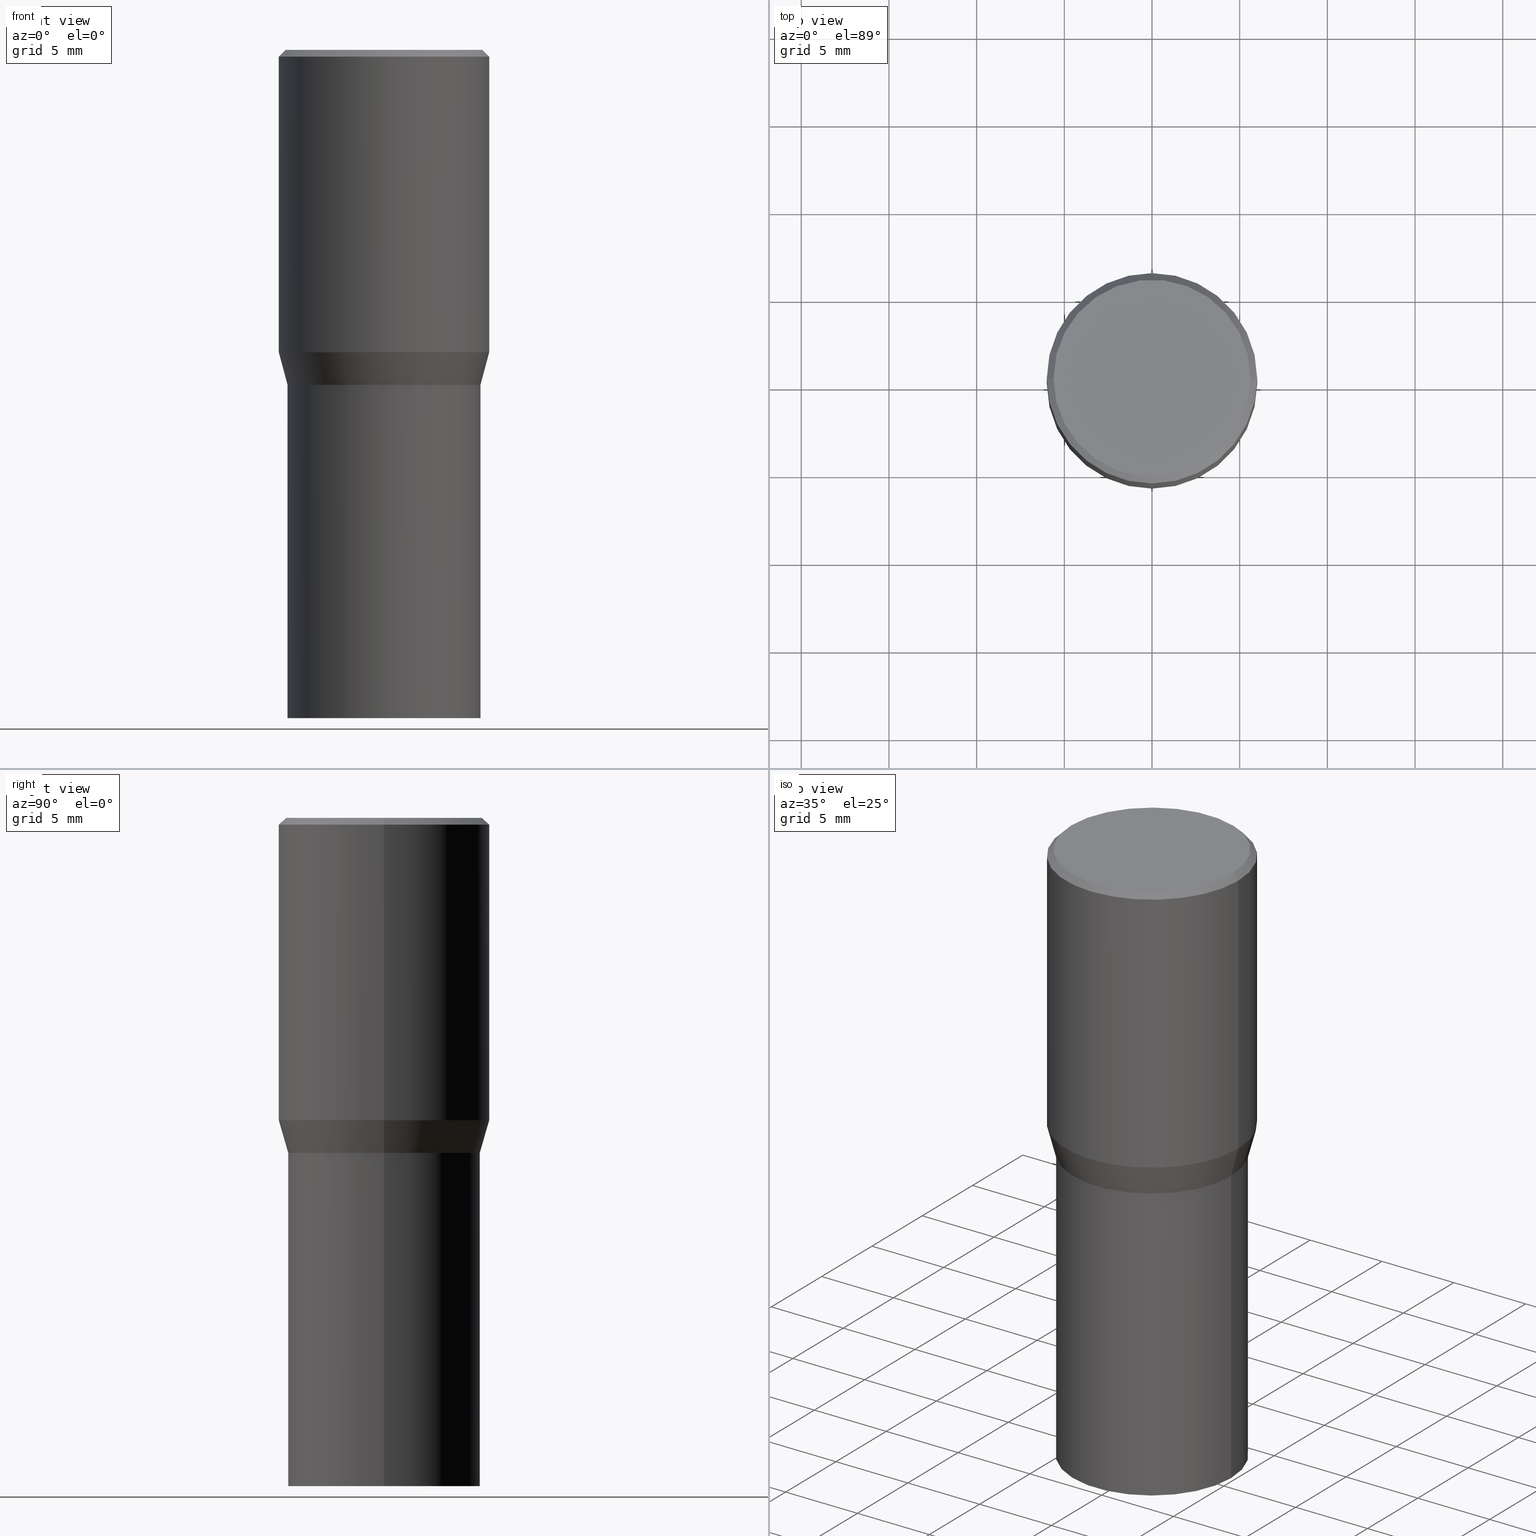
[diagram: canonical four-view strip — front | top / right | iso, engineering-drawing reading convention]
A machine part, canonical four-view strip (front | top / right | iso — engineering-drawing reading convention). The complete STEP part file that produces these views, byte-faithful:
ISO-10303-21;
HEADER;
FILE_DESCRIPTION (( 'STEP AP203' ),
    '1' );
FILE_NAME ('49150.STEP',
    '2024-03-12T19:58:21',
    ( '' ),
    ( '' ),
    'SwSTEP 2.0',
    'SolidWorks 2023',
    '' );
FILE_SCHEMA (( 'CONFIG_CONTROL_DESIGN' ));
ENDSEC;

DATA;
#1 = ORIENTED_EDGE ( 'NONE', *, *, #308, .T. ) ;
#2 = FACE_OUTER_BOUND ( 'NONE', #42, .T. ) ;
#3 = VECTOR ( 'NONE', #387, 39.37007874015748143 ) ;
#4 = AXIS2_PLACEMENT_3D ( 'NONE', #432, #307, #118 ) ;
#5 = CC_DESIGN_PERSON_AND_ORGANIZATION_ASSIGNMENT ( #277, #135, ( #119 ) ) ;
#6 = DIRECTION ( 'NONE',  ( -2.445468806185136877E-29, 3.491481338843145188E-15, 1.000000000000000000 ) ) ;
#7 = ORIENTED_EDGE ( 'NONE', *, *, #65, .F. ) ;
#8 = DIRECTION ( 'NONE',  ( 0.000000000000000000, 0.000000000000000000, 1.000000000000000000 ) ) ;
#9 = EDGE_LOOP ( 'NONE', ( #275, #311 ) ) ;
#10 = ADVANCED_FACE ( 'NONE', ( #91 ), #18, .T. ) ;
#11 = ORIENTED_EDGE ( 'NONE', *, *, #430, .T. ) ;
#12 = AXIS2_PLACEMENT_3D ( 'NONE', #451, #141, #109 ) ;
#13 = SECURITY_CLASSIFICATION ( '', '', #111 ) ;
#14 = PERSON_AND_ORGANIZATION ( #379, #140 ) ;
#15 = EDGE_LOOP ( 'NONE', ( #209, #408, #1, #280 ) ) ;
#16 = DESIGN_CONTEXT ( 'detailed design', #356, 'design' ) ;
#17 = DIRECTION ( 'NONE',  ( 1.000000000000000000, -6.982962677686266711E-15, 0.000000000000000000 ) ) ;
#18 = CYLINDRICAL_SURFACE ( 'NONE', #224, 0.2361999999999999933 ) ;
#19 = DIRECTION ( 'NONE',  ( 1.000000000000000000, -6.982962677686266711E-15, 4.876176775795935793E-29 ) ) ;
#20 = CONICAL_SURFACE ( 'NONE', #200, 0.2160500000000000198, 0.7853981633977554777 ) ;
#21 = VERTEX_POINT ( 'NONE', #278 ) ;
#22 = LINE ( 'NONE', #73, #330 ) ;
#23 = DIRECTION ( 'NONE',  ( -2.445468806185136597E-29, 3.491481338843145583E-15, 1.000000000000000000 ) ) ;
#24 = CLOSED_SHELL ( 'NONE', ( #74, #313, #376, #268 ) ) ;
#25 = CALENDAR_DATE ( 2024, 12, 3 ) ;
#26 = CIRCLE ( 'NONE', #383, 0.2165500000000000203 ) ;
#27 = CARTESIAN_POINT ( 'NONE',  ( 1.838992542251222532E-29, -2.625593966810045103E-15, -0.7519999999999998908 ) ) ;
#28 = DIRECTION ( 'NONE',  ( 1.000000000000000000, -6.982962677686264344E-15, 0.000000000000000000 ) ) ;
#29 = APPLICATION_CONTEXT ( 'configuration controlled 3d designs of mechanical parts and assemblies' ) ;
#30 = CARTESIAN_POINT ( 'NONE',  ( 1.544631344304202170E-15, 0.2212000000000000077, -7.488084343291421542E-16 ) ) ;
#31 = COORDINATED_UNIVERSAL_TIME_OFFSET ( 5, 0, .BEHIND. ) ;
#32 = ADVANCED_FACE ( 'NONE', ( #374 ), #70, .T. ) ;
#33 = AXIS2_PLACEMENT_3D ( 'NONE', #400, #235, #271 ) ;
#34 = CIRCLE ( 'NONE', #297, 0.2165500000000000203 ) ;
#35 = DIRECTION ( 'NONE',  ( 2.438088387897960049E-29, -3.491481338843145188E-15, -1.000000000000000000 ) ) ;
#36 = ORIENTED_EDGE ( 'NONE', *, *, #112, .F. ) ;
#37 = CALENDAR_DATE ( 2024, 12, 3 ) ;
#38 = DIRECTION ( 'NONE',  ( 1.000000000000000000, -6.982962677686266711E-15, 0.000000000000000000 ) ) ;
#39 = ORIENTED_EDGE ( 'NONE', *, *, #456, .T. ) ;
#40 = CARTESIAN_POINT ( 'NONE',  ( 0.2160500000000000198, -4.134263053324163313E-15, -0.7519999999999998908 ) ) ;
#41 = CC_DESIGN_PERSON_AND_ORGANIZATION_ASSIGNMENT ( #221, #69, ( #13 ) ) ;
#42 = EDGE_LOOP ( 'NONE', ( #223, #371 ) ) ;
#43 = CIRCLE ( 'NONE', #319, 0.2361999999999999933 ) ;
#44 = DIRECTION ( 'NONE',  ( -2.445468806185136597E-29, 3.491481338843145583E-15, 1.000000000000000000 ) ) ;
#45 = ORIENTED_EDGE ( 'NONE', *, *, #351, .T. ) ;
#46 = LENGTH_MEASURE_WITH_UNIT ( LENGTH_MEASURE( 0.02539999999999999897 ), #204 );
#47 = EDGE_CURVE ( 'NONE', #447, #21, #418, .T. ) ;
#48 = ORIENTED_EDGE ( 'NONE', *, *, #166, .F. ) ;
#49 = CALENDAR_DATE ( 2024, 12, 3 ) ;
#50 = MANIFOLD_SOLID_BREP ( 'Body-Move/Copy2[2]', #213 ) ;
#51 = DIRECTION ( 'NONE',  ( -2.445468806185136597E-29, 3.491481338843145583E-15, 1.000000000000000000 ) ) ;
#52 = DATE_TIME_ROLE ( 'creation_date' ) ;
#53 = FACE_OUTER_BOUND ( 'NONE', #270, .T. ) ;
#54 = AXIS2_PLACEMENT_3D ( 'NONE', #327, #386, #257 ) ;
#55 = DIRECTION ( 'NONE',  ( -2.445468806185136597E-29, 3.491481338843145583E-15, 1.000000000000000000 ) ) ;
#56 = ORIENTED_EDGE ( 'NONE', *, *, #97, .T. ) ;
#57 = EDGE_CURVE ( 'NONE', #229, #21, #426, .T. ) ;
#58 = DIRECTION ( 'NONE',  ( -2.445468806185136597E-29, 3.491481338843145583E-15, 1.000000000000000000 ) ) ;
#59 = VERTEX_POINT ( 'NONE', #100 ) ;
#60 = CC_DESIGN_DATE_AND_TIME_ASSIGNMENT ( #361, #187, ( #13 ) ) ;
#61 = EDGE_LOOP ( 'NONE', ( #363, #345 ) ) ;
#62 = VECTOR ( 'NONE', #357, 39.37007874015748143 ) ;
#63 = PRODUCT_DEFINITION_FORMATION_WITH_SPECIFIED_SOURCE ( 'ANY', '', #404, .NOT_KNOWN. ) ;
#64 = DIRECTION ( 'NONE',  ( 1.000000000000000000, -6.982962677686266711E-15, 0.000000000000000000 ) ) ;
#65 = EDGE_CURVE ( 'NONE', #447, #304, #174, .T. ) ;
#66 = DIRECTION ( 'NONE',  ( -2.445468806185136597E-29, 3.491481338843145583E-15, 1.000000000000000000 ) ) ;
#67 = PLANE ( 'NONE',  #354 ) ;
#68 = CIRCLE ( 'NONE', #96, 0.2165500000000000203 ) ;
#69 = PERSON_AND_ORGANIZATION_ROLE ( 'classification_officer' ) ;
#70 = CONICAL_SURFACE ( 'NONE', #397, 0.2165500000000000203, 0.2617993877991505736 ) ;
#71 = AXIS2_PLACEMENT_3D ( 'NONE', #407, #55, #17 ) ;
#72 = DIRECTION ( 'NONE',  ( 1.000000000000000000, -6.982962677686266711E-15, 0.000000000000000000 ) ) ;
#73 = CARTESIAN_POINT ( 'NONE',  ( -0.2361999999999999933, 1.597003564386848854E-15, -0.01499999999999999944 ) ) ;
#74 = ADVANCED_FACE ( 'NONE', ( #53 ), #203, .T. ) ;
#75 = LINE ( 'NONE', #466, #258 ) ;
#76 = DATE_AND_TIME ( #25, #389 ) ;
#77 = AXIS2_PLACEMENT_3D ( 'NONE', #453, #176, #72 ) ;
#78 = FACE_OUTER_BOUND ( 'NONE', #132, .T. ) ;
#79 = EDGE_LOOP ( 'NONE', ( #367, #413 ) ) ;
#80 = CARTESIAN_POINT ( 'NONE',  ( 3.668203209277704895E-29, -5.237222008264718177E-15, -1.500000000000000222 ) ) ;
#81 = EDGE_LOOP ( 'NONE', ( #380, #350, #11, #95 ) ) ;
#82 = CYLINDRICAL_SURFACE ( 'NONE', #84, 0.2165500000000001035 ) ;
#83 = ORIENTED_EDGE ( 'NONE', *, *, #423, .F. ) ;
#84 = AXIS2_PLACEMENT_3D ( 'NONE', #262, #334, #266 ) ;
#85 = DIRECTION ( 'NONE',  ( -2.445468806185136597E-29, 3.491481338843145583E-15, 1.000000000000000000 ) ) ;
#86 = CC_DESIGN_APPROVAL ( #231, ( #63 ) ) ;
#87 = ORIENTED_EDGE ( 'NONE', *, *, #452, .T. ) ;
#88 = ADVANCED_FACE ( 'NONE', ( #321 ), #145, .T. ) ;
#89 = EDGE_CURVE ( 'NONE', #438, #244, #282, .T. ) ;
#90 = FACE_OUTER_BOUND ( 'NONE', #365, .T. ) ;
#91 = FACE_OUTER_BOUND ( 'NONE', #433, .T. ) ;
#92 = PERSON_AND_ORGANIZATION_ROLE ( 'design_owner' ) ;
#93 = DIRECTION ( 'NONE',  ( 1.000000000000000000, -6.982962677686266711E-15, 0.000000000000000000 ) ) ;
#94 =( CONVERSION_BASED_UNIT ( 'INCH', #46 ) LENGTH_UNIT ( ) NAMED_UNIT ( #254 ) );
#95 = ORIENTED_EDGE ( 'NONE', *, *, #247, .F. ) ;
#96 = AXIS2_PLACEMENT_3D ( 'NONE', #326, #455, #294 ) ;
#97 = EDGE_CURVE ( 'NONE', #441, #159, #208, .T. ) ;
#98 = DIRECTION ( 'NONE',  ( -2.445468806185136877E-29, 3.491481338843145188E-15, 1.000000000000000000 ) ) ;
#99 = CC_DESIGN_PERSON_AND_ORGANIZATION_ASSIGNMENT ( #415, #92, ( #404 ) ) ;
#100 = CARTESIAN_POINT ( 'NONE',  ( -0.2212000000000000077, 1.570817454345525709E-15, 4.701447564591265970E-17 ) ) ;
#101 = DIRECTION ( 'NONE',  ( 1.000000000000000000, 0.000000000000000000, 0.000000000000000000 ) ) ;
#102 = ORIENTED_EDGE ( 'NONE', *, *, #196, .T. ) ;
#103 = DIRECTION ( 'NONE',  ( -1.000000000000000000, 6.982962677686266711E-15, 0.000000000000000000 ) ) ;
#104 = AXIS2_PLACEMENT_3D ( 'NONE', #256, #391, #151 ) ;
#105 = ADVANCED_FACE ( 'NONE', ( #392 ), #215, .F. ) ;
#106 =( GEOMETRIC_REPRESENTATION_CONTEXT ( 3 ) GLOBAL_UNCERTAINTY_ASSIGNED_CONTEXT ( ( #465 ) ) GLOBAL_UNIT_ASSIGNED_CONTEXT ( ( #94, #243, #171 ) ) REPRESENTATION_CONTEXT ( 'NONE', 'WORKASPACE' ) );
#107 = FACE_OUTER_BOUND ( 'NONE', #61, .T. ) ;
#108 = CARTESIAN_POINT ( 'NONE',  ( -0.2160500000000000198, -1.090466386200348708E-15, -0.7519999999999998908 ) ) ;
#109 = DIRECTION ( 'NONE',  ( -1.000000000000000000, 6.982962677686266711E-15, 0.000000000000000000 ) ) ;
#110 = VECTOR ( 'NONE', #185, 39.37007874015748143 ) ;
#111 = SECURITY_CLASSIFICATION_LEVEL ( 'unclassified' ) ;
#112 = EDGE_CURVE ( 'NONE', #59, #159, #22, .T. ) ;
#113 = CARTESIAN_POINT ( 'NONE',  ( -0.2361999999999999933, 4.673423884151294145E-16, -0.01499999999999999944 ) ) ;
#114 = FACE_OUTER_BOUND ( 'NONE', #126, .T. ) ;
#115 = ORIENTED_EDGE ( 'NONE', *, *, #142, .F. ) ;
#116 = PERSON_AND_ORGANIZATION ( #379, #140 ) ;
#117 = ADVANCED_BREP_SHAPE_REPRESENTATION ( '49150', ( #369, #50, #398 ), #106 ) ;
#118 = DIRECTION ( 'NONE',  ( 1.000000000000000000, -6.982962677686266711E-15, 4.876176775795935793E-29 ) ) ;
#119 = PRODUCT_DEFINITION ( 'UNKNOWN', '', #63, #16 ) ;
#120 = AXIS2_PLACEMENT_3D ( 'NONE', #459, #211, #177 ) ;
#121 = VECTOR ( 'NONE', #127, 39.37007874015748143 ) ;
#122 = ADVANCED_FACE ( 'NONE', ( #219 ), #20, .T. ) ;
#123 = PLANE ( 'NONE',  #368 ) ;
#124 = ORIENTED_EDGE ( 'NONE', *, *, #250, .T. ) ;
#125 = DIRECTION ( 'NONE',  ( 1.000000000000000000, -6.982962677686266711E-15, 0.000000000000000000 ) ) ;
#126 = EDGE_LOOP ( 'NONE', ( #337, #102, #436, #272 ) ) ;
#127 = DIRECTION ( 'NONE',  ( -0.2588190451025218497, 5.211531920934553408E-15, 0.9659258262890679791 ) ) ;
#128 = EDGE_LOOP ( 'NONE', ( #339, #340, #344, #306 ) ) ;
#129 = CIRCLE ( 'NONE', #77, 0.2361999999999999933 ) ;
#130 = DATE_AND_TIME ( #49, #161 ) ;
#131 = CC_DESIGN_DATE_AND_TIME_ASSIGNMENT ( #409, #52, ( #119 ) ) ;
#132 = EDGE_LOOP ( 'NONE', ( #39, #403, #302, #7 ) ) ;
#133 = CALENDAR_DATE ( 2024, 12, 3 ) ;
#134 = EDGE_LOOP ( 'NONE', ( #246, #170, #227, #186 ) ) ;
#135 = PERSON_AND_ORGANIZATION_ROLE ( 'creator' ) ;
#136 = DIRECTION ( 'NONE',  ( -2.445468806185136597E-29, 3.491481338843145583E-15, 1.000000000000000000 ) ) ;
#137 = APPLICATION_PROTOCOL_DEFINITION ( 'international standard', 'config_control_design', 1994, #29 ) ;
#138 = CIRCLE ( 'NONE', #449, 0.2165500000000002145 ) ;
#139 = ORIENTED_EDGE ( 'NONE', *, *, #411, .F. ) ;
#140 = ORGANIZATION ( 'UNSPECIFIED', 'UNSPECIFIED', '' ) ;
#141 = DIRECTION ( 'NONE',  ( 2.445468806185136597E-29, -3.491481338843145583E-15, -1.000000000000000000 ) ) ;
#142 = EDGE_CURVE ( 'NONE', #159, #441, #129, .T. ) ;
#143 = CARTESIAN_POINT ( 'NONE',  ( 1.659654580432621677E-29, -2.369546886817807077E-15, -0.6786652016312719748 ) ) ;
#144 = FACE_OUTER_BOUND ( 'NONE', #309, .T. ) ;
#145 = CONICAL_SURFACE ( 'NONE', #12, 0.2361999999999999933, 0.7853981633974459475 ) ;
#146 = CONICAL_SURFACE ( 'NONE', #414, 0.2160500000000000198, 0.7853981633977554777 ) ;
#147 = DIRECTION ( 'NONE',  ( -2.445468806185136597E-29, 3.491481338843145583E-15, 1.000000000000000000 ) ) ;
#148 = LINE ( 'NONE', #421, #62 ) ;
#149 = CALENDAR_DATE ( 2024, 12, 3 ) ;
#150 = EDGE_CURVE ( 'NONE', #443, #335, #26, .T. ) ;
#151 = DIRECTION ( 'NONE',  ( 1.000000000000000000, -6.982962677686266711E-15, 4.876176775795935793E-29 ) ) ;
#152 = CIRCLE ( 'NONE', #242, 0.2160500000000000198 ) ;
#153 = DIRECTION ( 'NONE',  ( 1.000000000000000000, -6.982962677686265922E-15, 4.876176775795935793E-29 ) ) ;
#154 = FACE_OUTER_BOUND ( 'NONE', #81, .T. ) ;
#155 = EDGE_CURVE ( 'NONE', #59, #241, #273, .T. ) ;
#156 = ORIENTED_EDGE ( 'NONE', *, *, #89, .F. ) ;
#157 = SHAPE_DEFINITION_REPRESENTATION ( #238, #117 ) ;
#158 = DIRECTION ( 'NONE',  ( 1.000000000000000000, -6.982962677686266711E-15, 0.000000000000000000 ) ) ;
#159 = VERTEX_POINT ( 'NONE', #113 ) ;
#160 = AXIS2_PLACEMENT_3D ( 'NONE', #424, #295, #64 ) ;
#161 = LOCAL_TIME ( 15, 58, 21.00000000000000000, #442 ) ;
#162 = DIRECTION ( 'NONE',  ( -1.000000000000000000, 6.982962677686265922E-15, -4.876176775795935793E-29 ) ) ;
#163 = ORIENTED_EDGE ( 'NONE', *, *, #430, .F. ) ;
#164 = LINE ( 'NONE', #440, #121 ) ;
#165 = EDGE_LOOP ( 'NONE', ( #232, #124, #333, #445 ) ) ;
#166 = EDGE_CURVE ( 'NONE', #448, #304, #183, .T. ) ;
#167 = APPROVAL_DATE_TIME ( #130, #372 ) ;
#168 = CARTESIAN_POINT ( 'NONE',  ( 1.838992542251222813E-29, -2.625593966810045497E-15, -0.7520000000000001128 ) ) ;
#169 = CARTESIAN_POINT ( 'NONE',  ( -0.2165500000000000203, -2.392727693248884740E-15, -1.500000000000000222 ) ) ;
#170 = ORIENTED_EDGE ( 'NONE', *, *, #155, .F. ) ;
#171 =( NAMED_UNIT ( * ) SI_UNIT ( $, .STERADIAN. ) SOLID_ANGLE_UNIT ( ) );
#172 = DIRECTION ( 'NONE',  ( 1.000000000000000000, -6.982962677686266711E-15, 0.000000000000000000 ) ) ;
#173 = CARTESIAN_POINT ( 'NONE',  ( 0.2165500000000000203, -4.137754534663007109E-15, -0.7520000000000001128 ) ) ;
#174 = LINE ( 'NONE', #207, #281 ) ;
#175 = APPROVAL ( #393, 'UNSPECIFIED' ) ;
#176 = DIRECTION ( 'NONE',  ( -2.445468806185136597E-29, 3.491481338843145583E-15, 1.000000000000000000 ) ) ;
#177 = DIRECTION ( 'NONE',  ( 1.000000000000000000, -6.982962677686265922E-15, 4.876176775795935793E-29 ) ) ;
#178 = CARTESIAN_POINT ( 'NONE',  ( -0.2165500000000000203, -2.392727693248884740E-15, -0.7520000000000001128 ) ) ;
#179 = CIRCLE ( 'NONE', #349, 0.2160500000000000198 ) ;
#180 = CARTESIAN_POINT ( 'NONE',  ( 1.512160567852979361E-15, 0.2165499999999973835, -0.7520000000000008900 ) ) ;
#181 = CARTESIAN_POINT ( 'NONE',  ( -0.2165500000000000203, -8.890793087369993447E-16, -0.7520000000000001128 ) ) ;
#182 = CARTESIAN_POINT ( 'NONE',  ( 1.837769807848130011E-29, -2.623848226140623599E-15, -0.7515000000000000568 ) ) ;
#183 = CIRCLE ( 'NONE', #325, 0.2361999999999999933 ) ;
#184 = COORDINATED_UNIVERSAL_TIME_OFFSET ( 5, 0, .BEHIND. ) ;
#185 = DIRECTION ( 'NONE',  ( 0.7071067811867647324, -2.468850131084532135E-15, 0.7071067811863303021 ) ) ;
#186 = ORIENTED_EDGE ( 'NONE', *, *, #142, .T. ) ;
#187 = DATE_TIME_ROLE ( 'classification_date' ) ;
#188 = DIRECTION ( 'NONE',  ( -2.445468806185136597E-29, 3.491481338843145583E-15, 1.000000000000000000 ) ) ;
#189 = ORIENTED_EDGE ( 'NONE', *, *, #395, .T. ) ;
#190 = DIRECTION ( 'NONE',  ( -2.445468806185136597E-29, 3.491481338843145583E-15, 1.000000000000000000 ) ) ;
#191 = ORIENTED_EDGE ( 'NONE', *, *, #276, .T. ) ;
#192 = AXIS2_PLACEMENT_3D ( 'NONE', #303, #190, #226 ) ;
#193 = LOCAL_TIME ( 15, 58, 21.00000000000000000, #184 ) ;
#194 = LINE ( 'NONE', #338, #217 ) ;
#195 = VERTEX_POINT ( 'NONE', #181 ) ;
#196 = EDGE_CURVE ( 'NONE', #195, #229, #148, .T. ) ;
#197 = ORIENTED_EDGE ( 'NONE', *, *, #65, .T. ) ;
#198 = CARTESIAN_POINT ( 'NONE',  ( 0.000000000000000000, 0.000000000000000000, 0.000000000000000000 ) ) ;
#199 = EDGE_LOOP ( 'NONE', ( #83, #341, #197, #48 ) ) ;
#200 = AXIS2_PLACEMENT_3D ( 'NONE', #27, #358, #296 ) ;
#201 = PERSON_AND_ORGANIZATION ( #379, #140 ) ;
#202 = AXIS2_PLACEMENT_3D ( 'NONE', #198, #58, #373 ) ;
#203 = CYLINDRICAL_SURFACE ( 'NONE', #264, 0.2165500000000000203 ) ;
#204 =( LENGTH_UNIT ( ) NAMED_UNIT ( * ) SI_UNIT ( $, .METRE. ) );
#205 = CARTESIAN_POINT ( 'NONE',  ( 0.000000000000000000, 0.000000000000000000, 0.000000000000000000 ) ) ;
#206 = APPROVAL_ROLE ( '' ) ;
#207 = CARTESIAN_POINT ( 'NONE',  ( 0.2165500000000000203, -4.137754534663007109E-15, -0.7520000000000001128 ) ) ;
#208 = CIRCLE ( 'NONE', #54, 0.2361999999999999933 ) ;
#209 = ORIENTED_EDGE ( 'NONE', *, *, #250, .F. ) ;
#210 = ADVANCED_FACE ( 'NONE', ( #107 ), #328, .F. ) ;
#211 = DIRECTION ( 'NONE',  ( -2.438088387897960049E-29, 3.491481338843145188E-15, 1.000000000000000000 ) ) ;
#212 = DIRECTION ( 'NONE',  ( 1.000000000000000000, -6.982962677686266711E-15, 0.000000000000000000 ) ) ;
#213 = CLOSED_SHELL ( 'NONE', ( #323, #390, #220, #10, #287, #32, #439, #88, #286, #210, #122, #105 ) ) ;
#214 = EDGE_CURVE ( 'NONE', #236, #399, #152, .T. ) ;
#215 = CYLINDRICAL_SURFACE ( 'NONE', #104, 0.2165500000000001035 ) ;
#216 = AXIS2_PLACEMENT_3D ( 'NONE', #261, #324, #103 ) ;
#217 = VECTOR ( 'NONE', #6, 39.37007874015748143 ) ;
#218 = DIRECTION ( 'NONE',  ( 1.000000000000000000, -6.982962677686266711E-15, 0.000000000000000000 ) ) ;
#219 = FACE_OUTER_BOUND ( 'NONE', #15, .T. ) ;
#220 = ADVANCED_FACE ( 'NONE', ( #144 ), #378, .T. ) ;
#221 = PERSON_AND_ORGANIZATION ( #379, #140 ) ;
#222 = CARTESIAN_POINT ( 'NONE',  ( 1.659654580432621677E-29, -2.369546886817807077E-15, -0.6786652016312719748 ) ) ;
#223 = ORIENTED_EDGE ( 'NONE', *, *, #395, .F. ) ;
#224 = AXIS2_PLACEMENT_3D ( 'NONE', #205, #51, #237 ) ;
#225 = PERSON_AND_ORGANIZATION_ROLE ( 'creator' ) ;
#226 = DIRECTION ( 'NONE',  ( 1.000000000000000000, -6.982962677686266711E-15, 0.000000000000000000 ) ) ;
#227 = ORIENTED_EDGE ( 'NONE', *, *, #112, .T. ) ;
#228 = DIRECTION ( 'NONE',  ( -2.445468806185136597E-29, 3.491481338843145583E-15, 1.000000000000000000 ) ) ;
#229 = VERTEX_POINT ( 'NONE', #385 ) ;
#230 = CARTESIAN_POINT ( 'NONE',  ( 0.2165500000000000203, -6.749382576117678999E-15, -1.500000000000000222 ) ) ;
#231 = APPROVAL ( #343, 'UNSPECIFIED' ) ;
#232 = ORIENTED_EDGE ( 'NONE', *, *, #239, .T. ) ;
#233 = CIRCLE ( 'NONE', #251, 0.2165500000000000203 ) ;
#234 = APPROVAL_PERSON_ORGANIZATION ( #201, #231, #279 ) ;
#235 = DIRECTION ( 'NONE',  ( -2.445468806185136597E-29, 3.491481338843145583E-15, 1.000000000000000000 ) ) ;
#236 = VERTEX_POINT ( 'NONE', #352 ) ;
#237 = DIRECTION ( 'NONE',  ( 1.000000000000000000, -6.982962677686266711E-15, 4.876176775795936353E-29 ) ) ;
#238 = PRODUCT_DEFINITION_SHAPE ( 'NONE', 'NONE',  #119 ) ;
#239 = EDGE_CURVE ( 'NONE', #399, #236, #179, .T. ) ;
#240 = CARTESIAN_POINT ( 'NONE',  ( 0.2165500000000000203, -1.512160567852961217E-15, 1.055936080798610036E-29 ) ) ;
#241 = VERTEX_POINT ( 'NONE', #353 ) ;
#242 = AXIS2_PLACEMENT_3D ( 'NONE', #419, #147, #252 ) ;
#243 =( NAMED_UNIT ( * ) PLANE_ANGLE_UNIT ( ) SI_UNIT ( $, .RADIAN. ) );
#244 = VERTEX_POINT ( 'NONE', #178 ) ;
#245 = APPROVAL_STATUS ( 'not_yet_approved' ) ;
#246 = ORIENTED_EDGE ( 'NONE', *, *, #276, .F. ) ;
#247 = EDGE_CURVE ( 'NONE', #244, #438, #68, .T. ) ;
#248 = PERSON_AND_ORGANIZATION ( #379, #140 ) ;
#249 = ORIENTED_EDGE ( 'NONE', *, *, #411, .T. ) ;
#250 = EDGE_CURVE ( 'NONE', #236, #229, #422, .T. ) ;
#251 = AXIS2_PLACEMENT_3D ( 'NONE', #299, #85, #125 ) ;
#252 = DIRECTION ( 'NONE',  ( 1.000000000000000000, -6.982962677686266711E-15, 0.000000000000000000 ) ) ;
#253 = CARTESIAN_POINT ( 'NONE',  ( 1.838992542251222532E-29, -2.625593966810045103E-15, -0.7519999999999998908 ) ) ;
#254 = DIMENSIONAL_EXPONENTS ( 1.000000000000000000, 0.000000000000000000, 0.000000000000000000, 0.000000000000000000, 0.000000000000000000, 0.000000000000000000, 0.000000000000000000 ) ;
#255 = CC_DESIGN_PERSON_AND_ORGANIZATION_ASSIGNMENT ( #248, #464, ( #63 ) ) ;
#256 = CARTESIAN_POINT ( 'NONE',  ( 0.000000000000000000, 0.000000000000000000, 0.000000000000000000 ) ) ;
#257 = DIRECTION ( 'NONE',  ( 1.000000000000000000, -6.982962677686266711E-15, 0.000000000000000000 ) ) ;
#258 = VECTOR ( 'NONE', #269, 39.37007874015748143 ) ;
#259 = CC_DESIGN_APPROVAL ( #175, ( #13 ) ) ;
#260 = APPROVAL_DATE_TIME ( #76, #231 ) ;
#261 = CARTESIAN_POINT ( 'NONE',  ( 3.668203209277705088E-31, -5.237222008264718399E-17, -0.01499999999999999944 ) ) ;
#262 = CARTESIAN_POINT ( 'NONE',  ( 0.000000000000000000, 0.000000000000000000, 0.000000000000000000 ) ) ;
#263 = FACE_OUTER_BOUND ( 'NONE', #165, .T. ) ;
#264 = AXIS2_PLACEMENT_3D ( 'NONE', #348, #316, #19 ) ;
#265 = LOCAL_TIME ( 15, 58, 21.00000000000000000, #31 ) ;
#266 = DIRECTION ( 'NONE',  ( 1.000000000000000000, -6.982962677686266711E-15, 4.876176775795935793E-29 ) ) ;
#267 = ORIENTED_EDGE ( 'NONE', *, *, #346, .F. ) ;
#268 = ADVANCED_FACE ( 'NONE', ( #457 ), #67, .F. ) ;
#269 = DIRECTION ( 'NONE',  ( 0.7071067811865459074, -7.319954787623251312E-15, -0.7071067811865492381 ) ) ;
#270 = EDGE_LOOP ( 'NONE', ( #189, #87, #156, #163 ) ) ;
#271 = DIRECTION ( 'NONE',  ( 1.000000000000000000, -6.982962677686267499E-15, 4.877828720335458505E-29 ) ) ;
#272 = ORIENTED_EDGE ( 'NONE', *, *, #47, .F. ) ;
#273 = CIRCLE ( 'NONE', #342, 0.2212000000000000077 ) ;
#274 = CARTESIAN_POINT ( 'NONE',  ( -0.2165500000000000203, 1.538680294288497096E-15, -1.065195393794699923E-29 ) ) ;
#275 = ORIENTED_EDGE ( 'NONE', *, *, #89, .T. ) ;
#276 = EDGE_CURVE ( 'NONE', #241, #441, #75, .T. ) ;
#277 = PERSON_AND_ORGANIZATION ( #379, #140 ) ;
#278 = CARTESIAN_POINT ( 'NONE',  ( 0.2165500000000002145, -4.136008793993586394E-15, -0.7515000000000000568 ) ) ;
#279 = APPROVAL_ROLE ( '' ) ;
#280 = ORIENTED_EDGE ( 'NONE', *, *, #57, .F. ) ;
#281 = VECTOR ( 'NONE', #377, 39.37007874015748143 ) ;
#282 = CIRCLE ( 'NONE', #160, 0.2165500000000000203 ) ;
#283 = MECHANICAL_CONTEXT ( 'NONE', #29, 'mechanical' ) ;
#284 = CIRCLE ( 'NONE', #71, 0.2165500000000000203 ) ;
#285 = ORIENTED_EDGE ( 'NONE', *, *, #351, .F. ) ;
#286 = ADVANCED_FACE ( 'NONE', ( #401 ), #462, .F. ) ;
#287 = ADVANCED_FACE ( 'NONE', ( #78 ), #388, .T. ) ;
#288 = CARTESIAN_POINT ( 'NONE',  ( 0.000000000000000000, 0.000000000000000000, 0.000000000000000000 ) ) ;
#289 = ORIENTED_EDGE ( 'NONE', *, *, #166, .T. ) ;
#290 = DIRECTION ( 'NONE',  ( -2.445468806185136597E-29, 3.491481338843145583E-15, 1.000000000000000000 ) ) ;
#291 = EDGE_CURVE ( 'NONE', #21, #229, #138, .T. ) ;
#292 = CARTESIAN_POINT ( 'NONE',  ( -1.149724336312568549E-45, 1.641501643732376111E-31, 4.701447564592355584E-17 ) ) ;
#293 = CC_DESIGN_SECURITY_CLASSIFICATION ( #13, ( #63 ) ) ;
#294 = DIRECTION ( 'NONE',  ( 1.000000000000000000, -6.982962677686266711E-15, 0.000000000000000000 ) ) ;
#295 = DIRECTION ( 'NONE',  ( -2.445468806185136597E-29, 3.491481338843145583E-15, 1.000000000000000000 ) ) ;
#296 = DIRECTION ( 'NONE',  ( 1.000000000000000000, -6.982962677686266711E-15, 0.000000000000000000 ) ) ;
#297 = AXIS2_PLACEMENT_3D ( 'NONE', #80, #228, #364 ) ;
#298 = EDGE_CURVE ( 'NONE', #304, #448, #43, .T. ) ;
#299 = CARTESIAN_POINT ( 'NONE',  ( 1.838992542251222813E-29, -2.625593966810045497E-15, -0.7520000000000001128 ) ) ;
#300 = APPROVAL_DATE_TIME ( #431, #175 ) ;
#301 = DIRECTION ( 'NONE',  ( -2.445468806185136877E-29, 3.491481338843145188E-15, 1.000000000000000000 ) ) ;
#302 = ORIENTED_EDGE ( 'NONE', *, *, #298, .F. ) ;
#303 = CARTESIAN_POINT ( 'NONE',  ( 1.838992542251222813E-29, -2.625593966810045497E-15, -0.7520000000000001128 ) ) ;
#304 = VERTEX_POINT ( 'NONE', #429 ) ;
#305 = DIRECTION ( 'NONE',  ( 1.000000000000000000, -6.982962677686266711E-15, 0.000000000000000000 ) ) ;
#306 = ORIENTED_EDGE ( 'NONE', *, *, #291, .T. ) ;
#307 = DIRECTION ( 'NONE',  ( -2.445468806185136597E-29, 3.491481338843145583E-15, 1.000000000000000000 ) ) ;
#308 = EDGE_CURVE ( 'NONE', #399, #21, #329, .T. ) ;
#309 = EDGE_LOOP ( 'NONE', ( #267, #191, #56, #36 ) ) ;
#310 = APPLICATION_PROTOCOL_DEFINITION ( 'international standard', 'config_control_design', 1994, #356 ) ;
#311 = ORIENTED_EDGE ( 'NONE', *, *, #247, .T. ) ;
#312 = VECTOR ( 'NONE', #301, 39.37007874015748143 ) ;
#313 = ADVANCED_FACE ( 'NONE', ( #2 ), #123, .F. ) ;
#314 = COORDINATED_UNIVERSAL_TIME_OFFSET ( 5, 0, .BEHIND. ) ;
#315 = CARTESIAN_POINT ( 'NONE',  ( 0.2165500000000001035, -1.512160567852961809E-15, 1.055936080798610456E-29 ) ) ;
#316 = DIRECTION ( 'NONE',  ( -2.445468806185136597E-29, 3.491481338843145583E-15, 1.000000000000000000 ) ) ;
#317 = DIRECTION ( 'NONE',  ( -2.445468806185136877E-29, 3.491481338843145188E-15, 1.000000000000000000 ) ) ;
#318 = EDGE_CURVE ( 'NONE', #195, #447, #233, .T. ) ;
#319 = AXIS2_PLACEMENT_3D ( 'NONE', #222, #336, #305 ) ;
#320 = CARTESIAN_POINT ( 'NONE',  ( 0.2361999999999999933, -1.701748004552143407E-15, -0.01499999999999999944 ) ) ;
#321 = FACE_OUTER_BOUND ( 'NONE', #134, .T. ) ;
#322 = DIRECTION ( 'NONE',  ( -2.445468806185136597E-29, 3.491481338843145583E-15, 1.000000000000000000 ) ) ;
#323 = ADVANCED_FACE ( 'NONE', ( #114 ), #82, .F. ) ;
#324 = DIRECTION ( 'NONE',  ( 2.445468806185136597E-29, -3.491481338843145583E-15, -1.000000000000000000 ) ) ;
#325 = AXIS2_PLACEMENT_3D ( 'NONE', #143, #290, #218 ) ;
#326 = CARTESIAN_POINT ( 'NONE',  ( 1.838992542251222813E-29, -2.625593966810045497E-15, -0.7520000000000001128 ) ) ;
#327 = CARTESIAN_POINT ( 'NONE',  ( 3.668203209277705088E-31, -5.237222008264718399E-17, -0.01499999999999999944 ) ) ;
#328 = PLANE ( 'NONE',  #120 ) ;
#329 = LINE ( 'NONE', #434, #110 ) ;
#330 = VECTOR ( 'NONE', #355, 39.37007874015748143 ) ;
#331 = PERSON_AND_ORGANIZATION ( #379, #140 ) ;
#332 = CARTESIAN_POINT ( 'NONE',  ( 3.576687321579069994E-29, -5.368277968210015545E-15, -1.500000000000000222 ) ) ;
#333 = ORIENTED_EDGE ( 'NONE', *, *, #291, .F. ) ;
#334 = DIRECTION ( 'NONE',  ( -2.445468806185136597E-29, 3.491481338843145583E-15, 1.000000000000000000 ) ) ;
#335 = VERTEX_POINT ( 'NONE', #230 ) ;
#336 = DIRECTION ( 'NONE',  ( -2.445468806185136597E-29, 3.491481338843145583E-15, 1.000000000000000000 ) ) ;
#337 = ORIENTED_EDGE ( 'NONE', *, *, #318, .F. ) ;
#338 = CARTESIAN_POINT ( 'NONE',  ( -0.2361999999999999933, 1.678301941865356591E-15, -1.161852468318208757E-29 ) ) ;
#339 = ORIENTED_EDGE ( 'NONE', *, *, #196, .F. ) ;
#340 = ORIENTED_EDGE ( 'NONE', *, *, #456, .F. ) ;
#341 = ORIENTED_EDGE ( 'NONE', *, *, #318, .T. ) ;
#342 = AXIS2_PLACEMENT_3D ( 'NONE', #292, #23, #428 ) ;
#343 = APPROVAL_STATUS ( 'not_yet_approved' ) ;
#344 = ORIENTED_EDGE ( 'NONE', *, *, #47, .T. ) ;
#345 = ORIENTED_EDGE ( 'NONE', *, *, #214, .F. ) ;
#346 = EDGE_CURVE ( 'NONE', #241, #59, #405, .T. ) ;
#347 = CARTESIAN_POINT ( 'NONE',  ( 0.2165500000000000203, -4.137754534663007109E-15, -0.7520000000000001128 ) ) ;
#348 = CARTESIAN_POINT ( 'NONE',  ( 0.000000000000000000, 0.000000000000000000, 0.000000000000000000 ) ) ;
#349 = AXIS2_PLACEMENT_3D ( 'NONE', #253, #66, #212 ) ;
#350 = ORIENTED_EDGE ( 'NONE', *, *, #150, .T. ) ;
#351 = EDGE_CURVE ( 'NONE', #304, #441, #362, .T. ) ;
#352 = CARTESIAN_POINT ( 'NONE',  ( -0.2160500000000000198, -1.087817159026237112E-15, -0.7519999999999998908 ) ) ;
#353 = CARTESIAN_POINT ( 'NONE',  ( 0.2212000000000000077, -1.595182002131672613E-15, 4.701447564593453210E-17 ) ) ;
#354 = AXIS2_PLACEMENT_3D ( 'NONE', #180, #394, #359 ) ;
#355 = DIRECTION ( 'NONE',  ( -0.7071067811865459074, 2.468850131082239706E-15, -0.7071067811865492381 ) ) ;
#356 = APPLICATION_CONTEXT ( 'configuration controlled 3d designs of mechanical parts and assemblies' ) ;
#357 = DIRECTION ( 'NONE',  ( -2.445468806185136877E-29, 3.491481338843145188E-15, 1.000000000000000000 ) ) ;
#358 = DIRECTION ( 'NONE',  ( -2.445468806185136597E-29, 3.491481338843145583E-15, 1.000000000000000000 ) ) ;
#359 = DIRECTION ( 'NONE',  ( -1.000000000000000000, 6.982962677686265922E-15, -4.876176775795935793E-29 ) ) ;
#360 = LOCAL_TIME ( 15, 58, 21.00000000000000000, #314 ) ;
#361 = DATE_AND_TIME ( #37, #193 ) ;
#362 = LINE ( 'NONE', #463, #312 ) ;
#363 = ORIENTED_EDGE ( 'NONE', *, *, #239, .F. ) ;
#364 = DIRECTION ( 'NONE',  ( 1.000000000000000000, -6.982962677686264344E-15, 0.000000000000000000 ) ) ;
#365 = EDGE_LOOP ( 'NONE', ( #139, #289, #45, #115 ) ) ;
#366 = CYLINDRICAL_SURFACE ( 'NONE', #4, 0.2165500000000000203 ) ;
#367 = ORIENTED_EDGE ( 'NONE', *, *, #155, .T. ) ;
#368 = AXIS2_PLACEMENT_3D ( 'NONE', #332, #437, #153 ) ;
#369 = MANIFOLD_SOLID_BREP ( 'Body-Move/Copy2[1]', #24 ) ;
#370 = CARTESIAN_POINT ( 'NONE',  ( -0.2361999999999999933, -6.912449449524502887E-16, -0.6786652016312719748 ) ) ;
#371 = ORIENTED_EDGE ( 'NONE', *, *, #150, .F. ) ;
#372 = APPROVAL ( #245, 'UNSPECIFIED' ) ;
#373 = DIRECTION ( 'NONE',  ( 1.000000000000000000, -6.982962677686266711E-15, 4.876176775795936353E-29 ) ) ;
#374 = FACE_OUTER_BOUND ( 'NONE', #199, .T. ) ;
#375 = LINE ( 'NONE', #274, #406 ) ;
#376 = ADVANCED_FACE ( 'NONE', ( #154 ), #366, .T. ) ;
#377 = DIRECTION ( 'NONE',  ( 0.2588190451025218497, 1.565188264969618221E-15, 0.9659258262890679791 ) ) ;
#378 = CONICAL_SURFACE ( 'NONE', #216, 0.2361999999999999933, 0.7853981633974459475 ) ;
#379 = PERSON ( 'UNSPECIFIED', 'UNSPECIFIED', 'UNSPECIFIED', ('UNSPECIFIED'), ('UNSPECIFIED'), ('UNSPECIFIED') ) ;
#380 = ORIENTED_EDGE ( 'NONE', *, *, #452, .F. ) ;
#381 = ORIENTED_EDGE ( 'NONE', *, *, #97, .F. ) ;
#382 = ORIENTED_EDGE ( 'NONE', *, *, #298, .T. ) ;
#383 = AXIS2_PLACEMENT_3D ( 'NONE', #454, #322, #28 ) ;
#384 = VECTOR ( 'NONE', #417, 39.37007874015748143 ) ;
#385 = CARTESIAN_POINT ( 'NONE',  ( -0.2165500000000002145, -1.085167931852125319E-15, -0.7515000000000000568 ) ) ;
#386 = DIRECTION ( 'NONE',  ( -2.445468806185136597E-29, 3.491481338843145583E-15, 1.000000000000000000 ) ) ;
#387 = DIRECTION ( 'NONE',  ( -0.7071067811867647324, 7.493145998871139866E-15, 0.7071067811863303021 ) ) ;
#388 = CONICAL_SURFACE ( 'NONE', #192, 0.2165500000000000203, 0.2617993877991505736 ) ;
#389 = LOCAL_TIME ( 15, 58, 21.00000000000000000, #425 ) ;
#390 = ADVANCED_FACE ( 'NONE', ( #263 ), #146, .T. ) ;
#391 = DIRECTION ( 'NONE',  ( -2.445468806185136597E-29, 3.491481338843145583E-15, 1.000000000000000000 ) ) ;
#392 = FACE_OUTER_BOUND ( 'NONE', #128, .T. ) ;
#393 = APPROVAL_STATUS ( 'not_yet_approved' ) ;
#394 = DIRECTION ( 'NONE',  ( 2.438088387897960049E-29, -3.491481338843145188E-15, -1.000000000000000000 ) ) ;
#395 = EDGE_CURVE ( 'NONE', #335, #443, #34, .T. ) ;
#396 = CARTESIAN_POINT ( 'NONE',  ( 1.838992542251222532E-29, -2.625593966810045103E-15, -0.7519999999999998908 ) ) ;
#397 = AXIS2_PLACEMENT_3D ( 'NONE', #168, #136, #172 ) ;
#398 = AXIS2_PLACEMENT_3D ( 'NONE', #288, #8, #101 ) ;
#399 = VERTEX_POINT ( 'NONE', #40 ) ;
#400 = CARTESIAN_POINT ( 'NONE',  ( -1.149724336312568549E-45, 1.641501643732376111E-31, 4.701447564592355584E-17 ) ) ;
#401 = FACE_OUTER_BOUND ( 'NONE', #79, .T. ) ;
#402 = LINE ( 'NONE', #240, #384 ) ;
#403 = ORIENTED_EDGE ( 'NONE', *, *, #423, .T. ) ;
#404 = PRODUCT ( '49150', '49150', '', ( #283 ) ) ;
#405 = CIRCLE ( 'NONE', #33, 0.2212000000000000077 ) ;
#406 = VECTOR ( 'NONE', #98, 39.37007874015748143 ) ;
#407 = CARTESIAN_POINT ( 'NONE',  ( 1.838992542251222813E-29, -2.625593966810045497E-15, -0.7520000000000001128 ) ) ;
#408 = ORIENTED_EDGE ( 'NONE', *, *, #214, .T. ) ;
#409 = DATE_AND_TIME ( #133, #360 ) ;
#410 = CARTESIAN_POINT ( 'NONE',  ( 1.837769807848130011E-29, -2.623848226140623599E-15, -0.7515000000000000568 ) ) ;
#411 = EDGE_CURVE ( 'NONE', #448, #159, #194, .T. ) ;
#412 = CYLINDRICAL_SURFACE ( 'NONE', #202, 0.2361999999999999933 ) ;
#413 = ORIENTED_EDGE ( 'NONE', *, *, #346, .T. ) ;
#414 = AXIS2_PLACEMENT_3D ( 'NONE', #396, #44, #38 ) ;
#415 = PERSON_AND_ORGANIZATION ( #379, #140 ) ;
#416 = DIRECTION ( 'NONE',  ( -2.445468806185136597E-29, 3.491481338843145583E-15, 1.000000000000000000 ) ) ;
#417 = DIRECTION ( 'NONE',  ( -2.445468806185136877E-29, 3.491481338843145188E-15, 1.000000000000000000 ) ) ;
#418 = LINE ( 'NONE', #315, #420 ) ;
#419 = CARTESIAN_POINT ( 'NONE',  ( 1.838992542251222532E-29, -2.625593966810045103E-15, -0.7519999999999998908 ) ) ;
#420 = VECTOR ( 'NONE', #317, 39.37007874015748143 ) ;
#421 = CARTESIAN_POINT ( 'NONE',  ( -0.2165500000000001035, 1.538680294288497688E-15, -1.065195393794700483E-29 ) ) ;
#422 = LINE ( 'NONE', #108, #3 ) ;
#423 = EDGE_CURVE ( 'NONE', #195, #448, #164, .T. ) ;
#424 = CARTESIAN_POINT ( 'NONE',  ( 1.838992542251222813E-29, -2.625593966810045497E-15, -0.7520000000000001128 ) ) ;
#425 = COORDINATED_UNIVERSAL_TIME_OFFSET ( 5, 0, .BEHIND. ) ;
#426 = CIRCLE ( 'NONE', #460, 0.2165500000000002145 ) ;
#427 = APPROVAL_PERSON_ORGANIZATION ( #14, #372, #206 ) ;
#428 = DIRECTION ( 'NONE',  ( 1.000000000000000000, -6.982962677686267499E-15, 4.877828720335458505E-29 ) ) ;
#429 = CARTESIAN_POINT ( 'NONE',  ( 0.2361999999999999933, -4.018922671287303208E-15, -0.6786652016312719748 ) ) ;
#430 = EDGE_CURVE ( 'NONE', #335, #438, #402, .T. ) ;
#431 = DATE_AND_TIME ( #149, #265 ) ;
#432 = CARTESIAN_POINT ( 'NONE',  ( 0.000000000000000000, 0.000000000000000000, 0.000000000000000000 ) ) ;
#433 = EDGE_LOOP ( 'NONE', ( #382, #249, #381, #285 ) ) ;
#434 = CARTESIAN_POINT ( 'NONE',  ( 0.2160500000000000198, -4.134263053324163313E-15, -0.7519999999999998908 ) ) ;
#435 = CC_DESIGN_APPROVAL ( #372, ( #119 ) ) ;
#436 = ORIENTED_EDGE ( 'NONE', *, *, #57, .T. ) ;
#437 = DIRECTION ( 'NONE',  ( -2.438088387897960049E-29, 3.491481338843145188E-15, 1.000000000000000000 ) ) ;
#438 = VERTEX_POINT ( 'NONE', #173 ) ;
#439 = ADVANCED_FACE ( 'NONE', ( #90 ), #412, .T. ) ;
#440 = CARTESIAN_POINT ( 'NONE',  ( -0.2165500000000000203, -1.086913672521548598E-15, -0.7520000000000001128 ) ) ;
#441 = VERTEX_POINT ( 'NONE', #320 ) ;
#442 = COORDINATED_UNIVERSAL_TIME_OFFSET ( 5, 0, .BEHIND. ) ;
#443 = VERTEX_POINT ( 'NONE', #169 ) ;
#444 = AXIS2_PLACEMENT_3D ( 'NONE', #30, #35, #162 ) ;
#445 = ORIENTED_EDGE ( 'NONE', *, *, #308, .F. ) ;
#446 = CC_DESIGN_PERSON_AND_ORGANIZATION_ASSIGNMENT ( #116, #225, ( #63 ) ) ;
#447 = VERTEX_POINT ( 'NONE', #347 ) ;
#448 = VERTEX_POINT ( 'NONE', #370 ) ;
#449 = AXIS2_PLACEMENT_3D ( 'NONE', #182, #188, #158 ) ;
#450 = APPROVAL_PERSON_ORGANIZATION ( #331, #175, #458 ) ;
#451 = CARTESIAN_POINT ( 'NONE',  ( 3.668203209277705088E-31, -5.237222008264718399E-17, -0.01499999999999999944 ) ) ;
#452 = EDGE_CURVE ( 'NONE', #443, #244, #375, .T. ) ;
#453 = CARTESIAN_POINT ( 'NONE',  ( 3.668203209277705088E-31, -5.237222008264718399E-17, -0.01499999999999999944 ) ) ;
#454 = CARTESIAN_POINT ( 'NONE',  ( 3.668203209277704895E-29, -5.237222008264718177E-15, -1.500000000000000222 ) ) ;
#455 = DIRECTION ( 'NONE',  ( -2.445468806185136597E-29, 3.491481338843145583E-15, 1.000000000000000000 ) ) ;
#456 = EDGE_CURVE ( 'NONE', #447, #195, #284, .T. ) ;
#457 = FACE_OUTER_BOUND ( 'NONE', #9, .T. ) ;
#458 = APPROVAL_ROLE ( '' ) ;
#459 = CARTESIAN_POINT ( 'NONE',  ( 1.838992542251222813E-29, -2.625593966810045497E-15, -0.7520000000000001128 ) ) ;
#460 = AXIS2_PLACEMENT_3D ( 'NONE', #410, #416, #93 ) ;
#461 = PRODUCT_RELATED_PRODUCT_CATEGORY ( 'detail', '', ( #404 ) ) ;
#462 = PLANE ( 'NONE',  #444 ) ;
#463 = CARTESIAN_POINT ( 'NONE',  ( 0.2361999999999999933, -1.649375784469496131E-15, 1.151752954443000088E-29 ) ) ;
#464 = PERSON_AND_ORGANIZATION_ROLE ( 'design_supplier' ) ;
#465 = UNCERTAINTY_MEASURE_WITH_UNIT (LENGTH_MEASURE( 1.000000000000000082E-05 ), #94, 'distance_accuracy_value', 'NONE');
#466 = CARTESIAN_POINT ( 'NONE',  ( 0.2361999999999999933, -1.672821847156282947E-15, -0.01499999999999999944 ) ) ;
ENDSEC;
END-ISO-10303-21;
